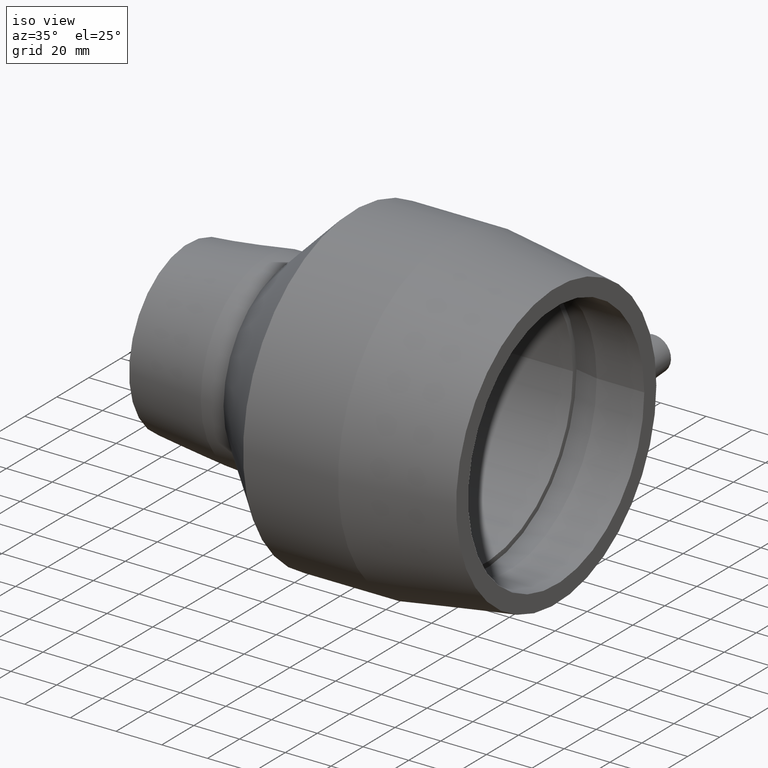
[diagram: clean part render]
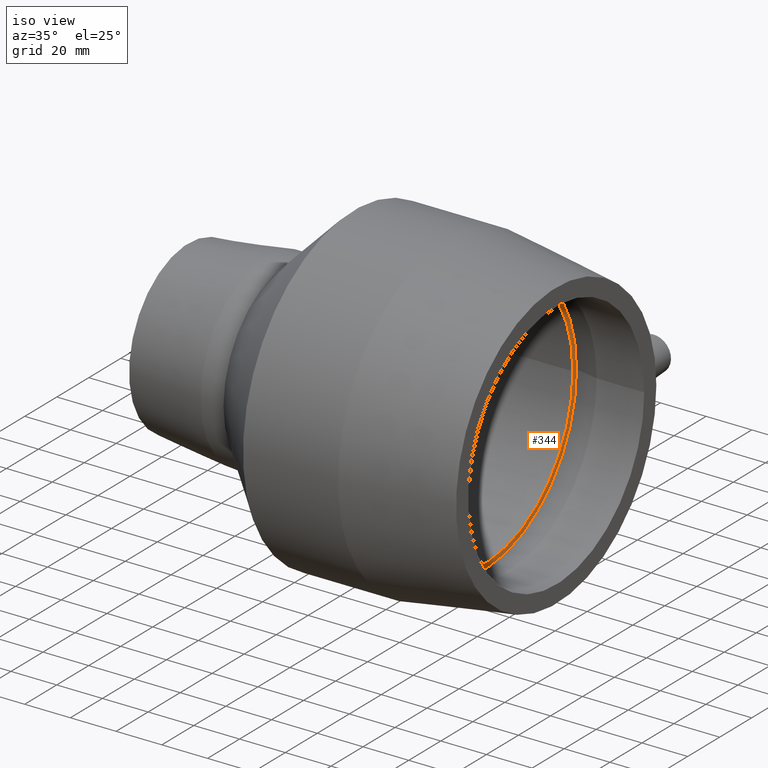
[diagram: same view with one face highlighted and labeled with its STEP entity id]
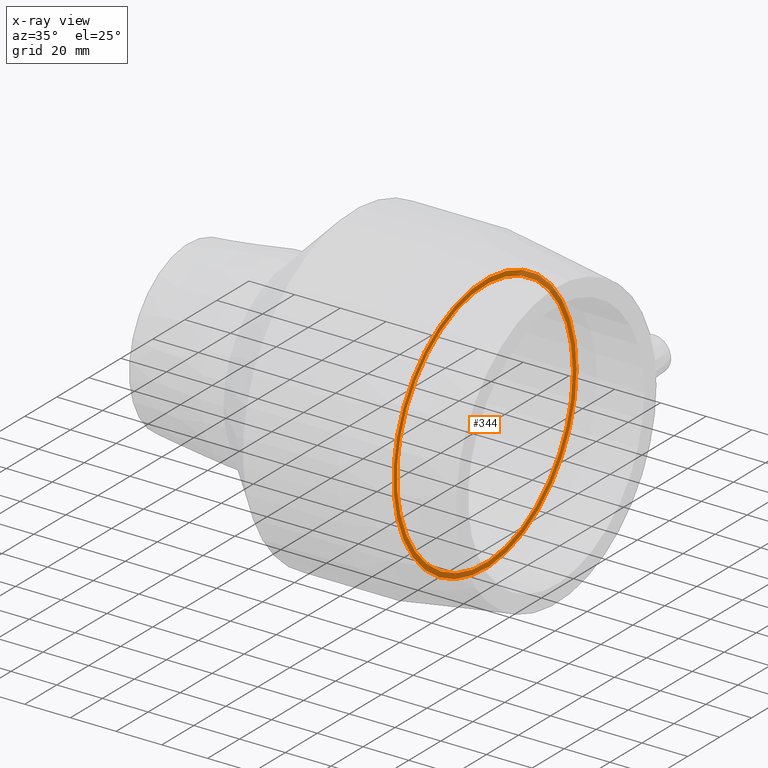
[diagram: x-ray of the same camera — body ghosted, the highlighted face saturated]
A machine part, iso view. The second image highlights one B-rep face of the part: STEP entity #344.
The next image is the same camera in x-ray: the body ghosted, the highlighted face saturated — about 20% of this face is hidden behind the body in this view.
In plain terms, the highlighted planar face has unit normal (1, 0, 0).
Its self-contained STEP definition (entity closure, byte-faithful):
#43=FACE_BOUND('',#136,.T.);
#86=FACE_OUTER_BOUND('',#135,.T.);
#135=EDGE_LOOP('',(#288));
#136=EDGE_LOOP('',(#289));
#177=CIRCLE('',#394,57.2105882413682);
#178=CIRCLE('',#396,55.);
#208=VERTEX_POINT('',#664);
#209=VERTEX_POINT('',#667);
#239=EDGE_CURVE('',#208,#208,#177,.T.);
#240=EDGE_CURVE('',#209,#209,#178,.T.);
#288=ORIENTED_EDGE('',*,*,#239,.T.);
#289=ORIENTED_EDGE('',*,*,#240,.F.);
#320=PLANE('',#395);
#344=ADVANCED_FACE('',(#86,#43),#320,.T.);
#394=AXIS2_PLACEMENT_3D('',#665,#492,#493);
#395=AXIS2_PLACEMENT_3D('',#666,#494,#495);
#396=AXIS2_PLACEMENT_3D('',#668,#496,#497);
#492=DIRECTION('center_axis',(1.,1.83697019872103E-16,0.));
#493=DIRECTION('ref_axis',(0.,0.,-1.));
#494=DIRECTION('center_axis',(1.,1.83697019872103E-16,0.));
#495=DIRECTION('ref_axis',(0.,0.,-1.));
#496=DIRECTION('center_axis',(1.,1.83697019872103E-16,0.));
#497=DIRECTION('ref_axis',(0.,0.,-1.));
#664=CARTESIAN_POINT('',(49.3,57.2105882413682,0.));
#665=CARTESIAN_POINT('Origin',(49.3,2.3843873179399E-14,0.));
#666=CARTESIAN_POINT('Origin',(49.3,55.,0.));
#667=CARTESIAN_POINT('',(49.3,55.,0.));
#668=CARTESIAN_POINT('Origin',(49.3,2.3843873179399E-14,0.));